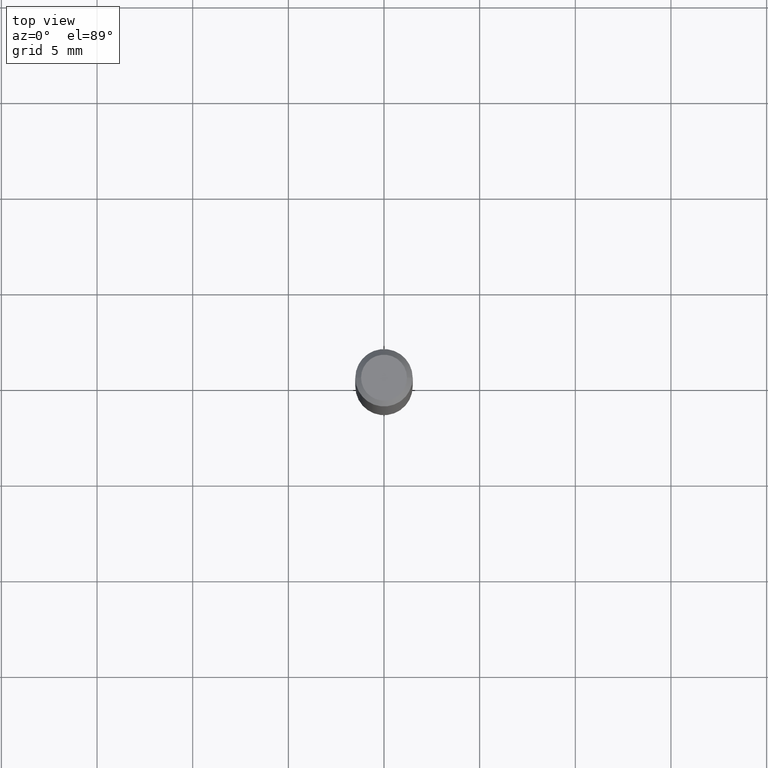
[diagram: clean part render]
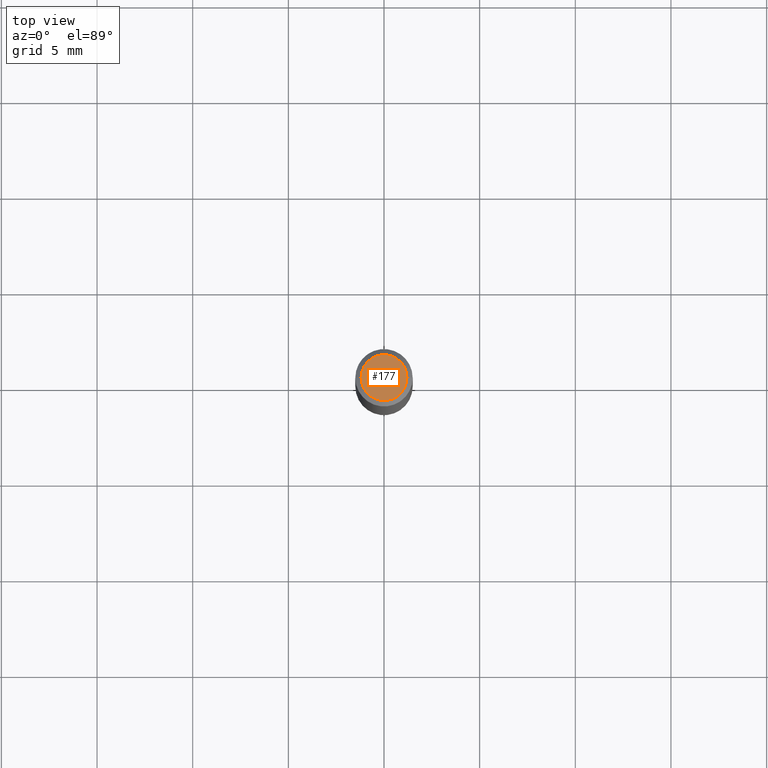
[diagram: same view with one face highlighted and labeled with its STEP entity id]
A machine part, top view. The second image highlights one B-rep face of the part: STEP entity #177.
In plain terms, the highlighted planar face has unit normal (0, -0, -1).
Its self-contained STEP definition (entity closure, byte-faithful):
#45 = EDGE_CURVE ( 'NONE', #224, #275, #311, .T. ) ;
#58 = EDGE_CURVE ( 'NONE', #275, #224, #334, .T. ) ;
#59 = AXIS2_PLACEMENT_3D ( 'NONE', #382, #310, #335 ) ;
#79 = CARTESIAN_POINT ( 'NONE',  ( 4.132873053354867254E-48, -5.900647395337818946E-34, -1.690012582823346072E-19 ) ) ;
#85 = ORIENTED_EDGE ( 'NONE', *, *, #58, .T. ) ;
#95 = DIRECTION ( 'NONE',  ( -1.000000000000000000, 6.982962677686265922E-15, -4.876176775795935793E-29 ) ) ;
#143 = FACE_OUTER_BOUND ( 'NONE', #429, .T. ) ;
#160 = PLANE ( 'NONE',  #173 ) ;
#173 = AXIS2_PLACEMENT_3D ( 'NONE', #79, #190, #95 ) ;
#177 = ADVANCED_FACE ( 'NONE', ( #143 ), #160, .F. ) ;
#190 = DIRECTION ( 'NONE',  ( 2.438088387897960049E-29, -3.491481338843145188E-15, -1.000000000000000000 ) ) ;
#224 = VERTEX_POINT ( 'NONE', #357 ) ;
#264 = DIRECTION ( 'NONE',  ( 1.000000000000000000, -6.982962677686266711E-15, 4.876185090822587894E-29 ) ) ;
#275 = VERTEX_POINT ( 'NONE', #406 ) ;
#296 = CARTESIAN_POINT ( 'NONE',  ( 8.265746106709734507E-48, -1.180129479067563789E-33, -3.380025165646692144E-19 ) ) ;
#310 = DIRECTION ( 'NONE',  ( -2.445468806185136597E-29, 3.491481338843145583E-15, 1.000000000000000000 ) ) ;
#311 = CIRCLE ( 'NONE', #59, 0.04724000000000000421 ) ;
#333 = AXIS2_PLACEMENT_3D ( 'NONE', #296, #444, #264 ) ;
#334 = CIRCLE ( 'NONE', #333, 0.04724000000000000421 ) ;
#335 = DIRECTION ( 'NONE',  ( 1.000000000000000000, -6.982962677686266711E-15, 4.876185090822587894E-29 ) ) ;
#357 = CARTESIAN_POINT ( 'NONE',  ( 0.04724000000000000421, -3.852183633974369345E-16, -3.380025165621689721E-19 ) ) ;
#382 = CARTESIAN_POINT ( 'NONE',  ( 8.265746106709734507E-48, -1.180129479067563789E-33, -3.380025165646692144E-19 ) ) ;
#406 = CARTESIAN_POINT ( 'NONE',  ( -0.04724000000000000421, 3.504923541997677355E-16, -3.380025165670481712E-19 ) ) ;
#429 = EDGE_LOOP ( 'NONE', ( #85, #471 ) ) ;
#444 = DIRECTION ( 'NONE',  ( -2.445468806185136597E-29, 3.491481338843145583E-15, 1.000000000000000000 ) ) ;
#471 = ORIENTED_EDGE ( 'NONE', *, *, #45, .T. ) ;